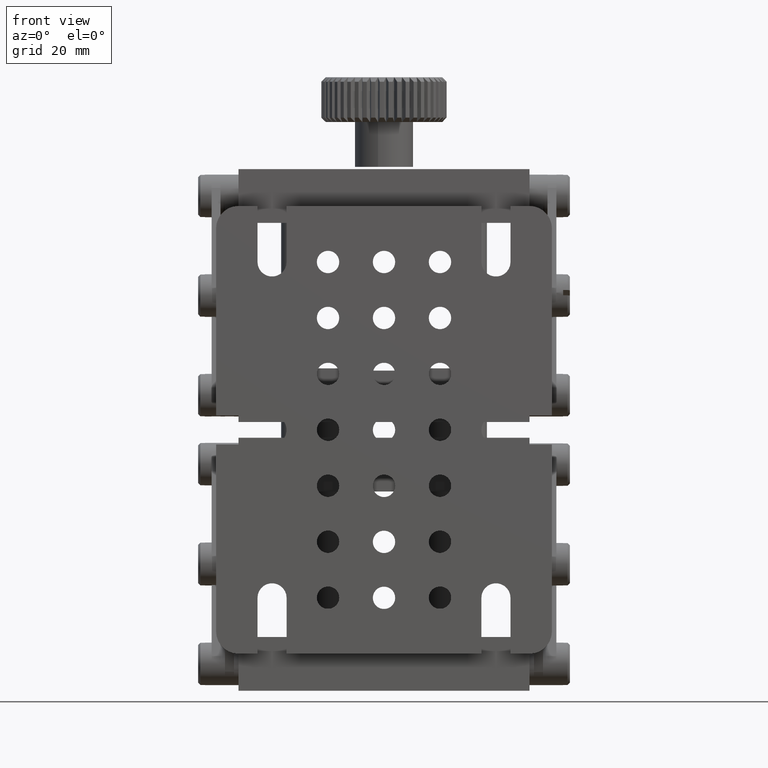
[diagram: clean part render]
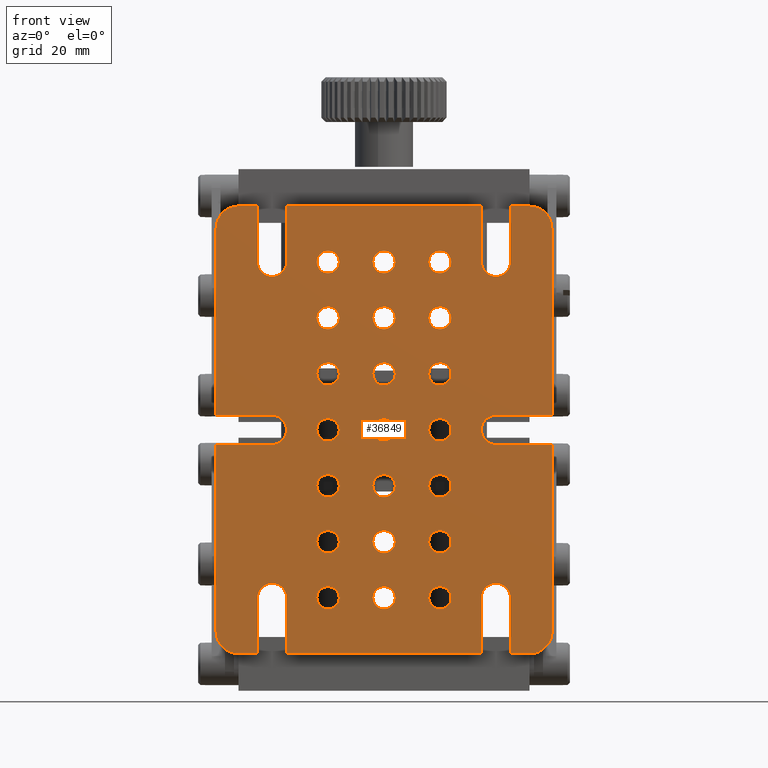
[diagram: same view with one face highlighted and labeled with its STEP entity id]
A machine part, front view. The second image highlights one B-rep face of the part: STEP entity #36849.
In plain terms, the highlighted planar face has unit normal (0, -1, 0).
Its self-contained STEP definition (entity closure, byte-faithful):
#48 = FACE_BOUND ( 'NONE', #4982, .T. ) ;
#97 = AXIS2_PLACEMENT_3D ( 'NONE', #21085, #1793, #24306 ) ;
#131 = AXIS2_PLACEMENT_3D ( 'NONE', #16512, #38948, #19742 ) ;
#220 = CARTESIAN_POINT ( 'NONE',  ( 28.25000000000000400, -10.00000000000000000, 4.765731633453711700E-017 ) ) ;
#238 = DIRECTION ( 'NONE',  ( -8.290220734028594700E-019, 2.423744276090663100E-018, 1.000000000000000000 ) ) ;
#265 = EDGE_CURVE ( 'NONE', #24177, #26945, #25893, .T. ) ;
#342 = EDGE_CURVE ( 'NONE', #38757, #31012, #9295, .T. ) ;
#399 = EDGE_LOOP ( 'NONE', ( #18436, #36636 ) ) ;
#420 = CIRCLE ( 'NONE', #6944, 2.499999999999988500 ) ;
#599 = CIRCLE ( 'NONE', #24145, 2.499999999999988500 ) ;
#759 = DIRECTION ( 'NONE',  ( -1.000000000000000000, -6.995776725858383900E-034, -8.290220734028532100E-019 ) ) ;
#854 = CIRCLE ( 'NONE', #3447, 3.249999999999999600 ) ;
#870 = DIRECTION ( 'NONE',  ( 1.000000000000000000, 0.0000000000000000000, 0.0000000000000000000 ) ) ;
#913 = DIRECTION ( 'NONE',  ( -5.547388448313205200E-034, -1.000000000000000000, 2.423744276090650800E-018 ) ) ;
#943 = DIRECTION ( 'NONE',  ( 1.000000000000000000, 0.0000000000000000000, 0.0000000000000000000 ) ) ;
#969 = AXIS2_PLACEMENT_3D ( 'NONE', #23780, #4516, #26976 ) ;
#980 = CIRCLE ( 'NONE', #31878, 2.499999999999988500 ) ;
#1049 = FACE_BOUND ( 'NONE', #4387, .T. ) ;
#1168 = VECTOR ( 'NONE', #22868, 1000.000000000000000 ) ;
#1189 = DIRECTION ( 'NONE',  ( 1.000000000000000000, 0.0000000000000000000, 0.0000000000000000000 ) ) ;
#1246 = CARTESIAN_POINT ( 'NONE',  ( 37.49999999999999300, -10.00000000000000000, 45.00000000000002100 ) ) ;
#1268 = ORIENTED_EDGE ( 'NONE', *, *, #32097, .T. ) ;
#1376 = CARTESIAN_POINT ( 'NONE',  ( 37.50000000000000700, -10.00000000000000000, -3.250000000000000000 ) ) ;
#1402 = CIRCLE ( 'NONE', #13084, 2.499999999999988500 ) ;
#1460 = EDGE_CURVE ( 'NONE', #25120, #38557, #20698, .T. ) ;
#1486 = CIRCLE ( 'NONE', #12867, 2.499999999999988500 ) ;
#1538 = CARTESIAN_POINT ( 'NONE',  ( 2.694321738559287200E-018, -10.00000000000000000, -3.250000000000000000 ) ) ;
#1562 = CIRCLE ( 'NONE', #13260, 2.499999999999988500 ) ;
#1608 = VECTOR ( 'NONE', #19036, 1000.000000000000000 ) ;
#1657 = CARTESIAN_POINT ( 'NONE',  ( -14.99999999999998900, -10.00000000000000200, -25.00000000000000000 ) ) ;
#1659 = AXIS2_PLACEMENT_3D ( 'NONE', #23748, #4477, #26935 ) ;
#1685 = CARTESIAN_POINT ( 'NONE',  ( -10.00000000000045700, -10.00000000000000200, 37.49999999999992200 ) ) ;
#1743 = CIRCLE ( 'NONE', #97, 2.499999999999988500 ) ;
#1751 = VERTEX_POINT ( 'NONE', #9962 ) ;
#1783 = AXIS2_PLACEMENT_3D ( 'NONE', #31188, #11904, #34406 ) ;
#1793 = DIRECTION ( 'NONE',  ( -5.547388448313205200E-034, -1.000000000000000000, 2.423744276090650800E-018 ) ) ;
#1839 = ORIENTED_EDGE ( 'NONE', *, *, #37717, .F. ) ;
#1911 = VERTEX_POINT ( 'NONE', #17525 ) ;
#1941 = DIRECTION ( 'NONE',  ( 1.000000000000000000, 0.0000000000000000000, 0.0000000000000000000 ) ) ;
#1984 = LINE ( 'NONE', #8261, #18065 ) ;
#1989 = CARTESIAN_POINT ( 'NONE',  ( -32.50000000000000700, -10.00000000000000000, 45.00000000000002100 ) ) ;
#2012 = CARTESIAN_POINT ( 'NONE',  ( 12.49999999999977800, -10.00000000000000200, 37.50000000000008500 ) ) ;
#2039 = VERTEX_POINT ( 'NONE', #21630 ) ;
#2050 = VECTOR ( 'NONE', #4770, 1000.000000000000000 ) ;
#2088 = FACE_BOUND ( 'NONE', #35841, .T. ) ;
#2102 = DIRECTION ( 'NONE',  ( 1.000000000000000000, 0.0000000000000000000, 0.0000000000000000000 ) ) ;
#2243 = CARTESIAN_POINT ( 'NONE',  ( -10.00000000000001200, -10.00000000000000200, 1.594722202687797000E-017 ) ) ;
#2308 = CIRCLE ( 'NONE', #11384, 2.499999999999988500 ) ;
#2448 = CARTESIAN_POINT ( 'NONE',  ( 12.50000000000000000, -10.00000000000000200, -12.50000000000000000 ) ) ;
#2497 = CARTESIAN_POINT ( 'NONE',  ( -5.547388448313206400E-033, -10.00000000000000200, 2.423744276090651100E-017 ) ) ;
#2707 = CARTESIAN_POINT ( 'NONE',  ( 25.00000000000000400, -10.00000000000000000, -37.49999999999999300 ) ) ;
#2740 = CARTESIAN_POINT ( 'NONE',  ( -12.50000000000000000, -10.00000000000000200, -12.50000000000000000 ) ) ;
#2796 = DIRECTION ( 'NONE',  ( -5.547388448313205200E-034, -1.000000000000000000, 2.423744276090650800E-018 ) ) ;
#2840 = VECTOR ( 'NONE', #238, 1000.000000000000000 ) ;
#2952 = DIRECTION ( 'NONE',  ( -6.855991696566941800E-017, -2.423744276090663100E-018, -1.000000000000000000 ) ) ;
#3044 = ORIENTED_EDGE ( 'NONE', *, *, #23288, .F. ) ;
#3070 = VERTEX_POINT ( 'NONE', #16264 ) ;
#3138 = CARTESIAN_POINT ( 'NONE',  ( 10.00000000000001200, -10.00000000000000200, -37.50000000000000700 ) ) ;
#3205 = CARTESIAN_POINT ( 'NONE',  ( 2.499999999999988500, -10.00000000000000200, 12.50000000000000000 ) ) ;
#3310 = AXIS2_PLACEMENT_3D ( 'NONE', #39733, #20487, #1189 ) ;
#3357 = EDGE_CURVE ( 'NONE', #6801, #16355, #31380, .T. ) ;
#3447 = AXIS2_PLACEMENT_3D ( 'NONE', #33203, #13909, #36401 ) ;
#3476 = DIRECTION ( 'NONE',  ( -5.547388448313205200E-034, -1.000000000000000000, 2.423744276090650800E-018 ) ) ;
#3607 = VECTOR ( 'NONE', #17018, 1000.000000000000000 ) ;
#3616 = CARTESIAN_POINT ( 'NONE',  ( -10.00000000000001200, -10.00000000000000200, -25.00000000000000000 ) ) ;
#3753 = VERTEX_POINT ( 'NONE', #29456 ) ;
#3838 = CARTESIAN_POINT ( 'NONE',  ( 32.49999999999999300, -10.00000000000000000, 50.00000000000001400 ) ) ;
#3942 = ORIENTED_EDGE ( 'NONE', *, *, #36582, .F. ) ;
#3957 = ORIENTED_EDGE ( 'NONE', *, *, #20389, .T. ) ;
#4064 = CARTESIAN_POINT ( 'NONE',  ( 37.50000000000000700, -10.00000000000000000, 3.250000000000000000 ) ) ;
#4304 = VECTOR ( 'NONE', #759, 1000.000000000000000 ) ;
#4387 = EDGE_LOOP ( 'NONE', ( #25816, #20390 ) ) ;
#4389 = CARTESIAN_POINT ( 'NONE',  ( -32.50000000000000000, -10.00000000000000000, -49.99999999999998600 ) ) ;
#4407 = VERTEX_POINT ( 'NONE', #39798 ) ;
#4474 = CARTESIAN_POINT ( 'NONE',  ( 14.99999999999976700, -10.00000000000000200, 25.00000000000008500 ) ) ;
#4477 = DIRECTION ( 'NONE',  ( -5.547388448313205200E-034, -1.000000000000000000, 2.423744276090650800E-018 ) ) ;
#4516 = DIRECTION ( 'NONE',  ( -5.547388448313205200E-034, -1.000000000000000000, 2.423744276090650800E-018 ) ) ;
#4663 = CARTESIAN_POINT ( 'NONE',  ( -2.499999999999988500, -10.00000000000000200, 12.50000000000000000 ) ) ;
#4715 = VERTEX_POINT ( 'NONE', #38070 ) ;
#4770 = DIRECTION ( 'NONE',  ( 1.000000000000000000, 6.995776725858383900E-034, 8.290220734028532100E-019 ) ) ;
#4896 = AXIS2_PLACEMENT_3D ( 'NONE', #33970, #14723, #37172 ) ;
#4929 = VERTEX_POINT ( 'NONE', #23820 ) ;
#4933 = DIRECTION ( 'NONE',  ( -5.547388448313205200E-034, -1.000000000000000000, 2.423744276090650800E-018 ) ) ;
#4975 = CARTESIAN_POINT ( 'NONE',  ( 21.75000000000000700, -10.00000000000000000, 4.226867285741857100E-017 ) ) ;
#4982 = EDGE_LOOP ( 'NONE', ( #36165, #33629 ) ) ;
#4985 = ORIENTED_EDGE ( 'NONE', *, *, #5718, .F. ) ;
#5004 = CIRCLE ( 'NONE', #3310, 2.499999999999988500 ) ;
#5010 = AXIS2_PLACEMENT_3D ( 'NONE', #40583, #21361, #2102 ) ;
#5209 = DIRECTION ( 'NONE',  ( 1.000000000000000000, 0.0000000000000000000, 0.0000000000000000000 ) ) ;
#5229 = DIRECTION ( 'NONE',  ( 1.000000000000000000, 0.0000000000000000000, 0.0000000000000000000 ) ) ;
#5360 = CARTESIAN_POINT ( 'NONE',  ( 10.00000000000001200, -10.00000000000000200, 3.265706419013189500E-016 ) ) ;
#5433 = VERTEX_POINT ( 'NONE', #20156 ) ;
#5459 = DIRECTION ( 'NONE',  ( -5.547388448313205200E-034, -1.000000000000000000, 2.423744276090650800E-018 ) ) ;
#5677 = DIRECTION ( 'NONE',  ( 1.000000000000000000, 0.0000000000000000000, 0.0000000000000000000 ) ) ;
#5711 = DIRECTION ( 'NONE',  ( 1.000000000000000000, 0.0000000000000000000, 8.290220734028532100E-019 ) ) ;
#5718 = EDGE_CURVE ( 'NONE', #37854, #21942, #38021, .T. ) ;
#5741 = ORIENTED_EDGE ( 'NONE', *, *, #26745, .F. ) ;
#5761 = CARTESIAN_POINT ( 'NONE',  ( -32.50000000000000000, -10.00000000000000000, -44.99999999999999300 ) ) ;
#5783 = CIRCLE ( 'NONE', #36000, 2.499999999999988500 ) ;
#5842 = EDGE_CURVE ( 'NONE', #4715, #35524, #2308, .T. ) ;
#5946 = DIRECTION ( 'NONE',  ( 1.000000000000000000, 0.0000000000000000000, 0.0000000000000000000 ) ) ;
#5989 = DIRECTION ( 'NONE',  ( 1.000000000000000000, 0.0000000000000000000, 0.0000000000000000000 ) ) ;
#6002 = VERTEX_POINT ( 'NONE', #4064 ) ;
#6207 = CIRCLE ( 'NONE', #6753, 2.499999999999988500 ) ;
#6356 = AXIS2_PLACEMENT_3D ( 'NONE', #11807, #34325, #15076 ) ;
#6468 = CIRCLE ( 'NONE', #35042, 2.499999999999988500 ) ;
#6549 = CARTESIAN_POINT ( 'NONE',  ( -12.50000000000044400, -10.00000000000000200, 37.49999999999992200 ) ) ;
#6612 = CARTESIAN_POINT ( 'NONE',  ( -2.499999999999988500, -10.00000000000000200, -37.50000000000000700 ) ) ;
#6753 = AXIS2_PLACEMENT_3D ( 'NONE', #22737, #3476, #25911 ) ;
#6801 = VERTEX_POINT ( 'NONE', #14938 ) ;
#6863 = CARTESIAN_POINT ( 'NONE',  ( -37.50000000000000700, -10.00000000000000000, 50.00000000000001400 ) ) ;
#6944 = AXIS2_PLACEMENT_3D ( 'NONE', #10208, #32756, #13456 ) ;
#6998 = LINE ( 'NONE', #16551, #40146 ) ;
#7068 = VERTEX_POINT ( 'NONE', #26522 ) ;
#7081 = CARTESIAN_POINT ( 'NONE',  ( -1.036277591753574800E-017, -10.00000000000000200, 12.50000000000000000 ) ) ;
#7101 = AXIS2_PLACEMENT_3D ( 'NONE', #16821, #36100, #32880 ) ;
#7132 = CARTESIAN_POINT ( 'NONE',  ( 37.49999999999999300, -10.00000000000000000, 50.00000000000001400 ) ) ;
#7280 = CIRCLE ( 'NONE', #40285, 2.499999999999988500 ) ;
#7290 = AXIS2_PLACEMENT_3D ( 'NONE', #14834, #37278, #18034 ) ;
#7339 = CARTESIAN_POINT ( 'NONE',  ( 14.99999999999998900, -10.00000000000000200, 12.50000000000008700 ) ) ;
#7594 = VECTOR ( 'NONE', #29790, 1000.000000000000000 ) ;
#7623 = ORIENTED_EDGE ( 'NONE', *, *, #32517, .F. ) ;
#7625 = FACE_BOUND ( 'NONE', #23111, .T. ) ;
#7963 = EDGE_CURVE ( 'NONE', #35524, #4715, #7280, .T. ) ;
#8105 = CARTESIAN_POINT ( 'NONE',  ( 1.036277591753573600E-017, -10.00000000000000200, -12.50000000000000000 ) ) ;
#8146 = AXIS2_PLACEMENT_3D ( 'NONE', #40429, #21229, #1941 ) ;
#8180 = DIRECTION ( 'NONE',  ( -5.547388448313205200E-034, -1.000000000000000000, 2.423744276090650800E-018 ) ) ;
#8261 = CARTESIAN_POINT ( 'NONE',  ( 37.49999999999999300, -10.00000000000000000, 50.00000000000001400 ) ) ;
#8276 = CIRCLE ( 'NONE', #34539, 2.499999999999988500 ) ;
#8364 = DIRECTION ( 'NONE',  ( -5.547388448313205200E-034, -1.000000000000000000, 2.423744276090650800E-018 ) ) ;
#8531 = DIRECTION ( 'NONE',  ( 1.000000000000000000, 6.995776725858383900E-034, 8.290220734028532100E-019 ) ) ;
#8572 = ORIENTED_EDGE ( 'NONE', *, *, #15360, .F. ) ;
#8632 = FACE_BOUND ( 'NONE', #41670, .T. ) ;
#8818 = CARTESIAN_POINT ( 'NONE',  ( 37.49999999999999300, -10.00000000000000000, 50.00000000000001400 ) ) ;
#8869 = ORIENTED_EDGE ( 'NONE', *, *, #18456, .F. ) ;
#8997 = DIRECTION ( 'NONE',  ( 1.000000000000000000, 0.0000000000000000000, 0.0000000000000000000 ) ) ;
#9058 = ORIENTED_EDGE ( 'NONE', *, *, #29476, .F. ) ;
#9110 = EDGE_CURVE ( 'NONE', #39692, #31501, #38247, .T. ) ;
#9295 = CIRCLE ( 'NONE', #41513, 2.499999999999988500 ) ;
#9423 = VERTEX_POINT ( 'NONE', #9740 ) ;
#9541 = ORIENTED_EDGE ( 'NONE', *, *, #11450, .F. ) ;
#9623 = FACE_BOUND ( 'NONE', #25073, .T. ) ;
#9692 = DIRECTION ( 'NONE',  ( -5.547388448313205200E-034, -1.000000000000000000, 2.423744276090650800E-018 ) ) ;
#9728 = DIRECTION ( 'NONE',  ( 1.000000000000000000, 0.0000000000000000000, 0.0000000000000000000 ) ) ;
#9740 = CARTESIAN_POINT ( 'NONE',  ( -2.499999999999988500, -10.00000000000000200, -25.00000000000000000 ) ) ;
#9741 = LINE ( 'NONE', #6863, #1168 ) ;
#9962 = CARTESIAN_POINT ( 'NONE',  ( 32.50000000000000700, -10.00000000000000000, -49.99999999999999300 ) ) ;
#10208 = CARTESIAN_POINT ( 'NONE',  ( -12.50000000000000000, -10.00000000000000200, 12.49999999999991500 ) ) ;
#10215 = EDGE_CURVE ( 'NONE', #5433, #34201, #23680, .T. ) ;
#10262 = CARTESIAN_POINT ( 'NONE',  ( -21.75000000000045100, -10.00000000000000000, 6.206212664394078400E-018 ) ) ;
#10263 = DIRECTION ( 'NONE',  ( 1.000000000000000000, 0.0000000000000000000, 0.0000000000000000000 ) ) ;
#10340 = CARTESIAN_POINT ( 'NONE',  ( 3.108832775260722300E-017, -10.00000000000000200, -37.50000000000000700 ) ) ;
#10482 = LINE ( 'NONE', #35307, #27576 ) ;
#10527 = AXIS2_PLACEMENT_3D ( 'NONE', #14951, #37373, #18151 ) ;
#10529 = CARTESIAN_POINT ( 'NONE',  ( -37.50000000000000700, -10.00000000000000000, 45.00000000000002100 ) ) ;
#10619 = CARTESIAN_POINT ( 'NONE',  ( -12.50000000000000000, -10.00000000000000200, 24.99999999999991100 ) ) ;
#10676 = CARTESIAN_POINT ( 'NONE',  ( 9.999999999999790400, -10.00000000000000200, 37.50000000000008500 ) ) ;
#10995 = ORIENTED_EDGE ( 'NONE', *, *, #33280, .F. ) ;
#11015 = DIRECTION ( 'NONE',  ( -5.547388448313205200E-034, -1.000000000000000000, 2.423744276090650800E-018 ) ) ;
#11041 = ORIENTED_EDGE ( 'NONE', *, *, #17003, .F. ) ;
#11054 = EDGE_CURVE ( 'NONE', #26945, #24177, #16002, .T. ) ;
#11157 = EDGE_CURVE ( 'NONE', #13131, #19544, #41059, .T. ) ;
#11332 = DIRECTION ( 'NONE',  ( 1.000000000000000000, 0.0000000000000000000, 0.0000000000000000000 ) ) ;
#11376 = LINE ( 'NONE', #38773, #2840 ) ;
#11382 = CARTESIAN_POINT ( 'NONE',  ( 21.75000000000045100, -10.00000000000000000, 37.49999999999983700 ) ) ;
#11384 = AXIS2_PLACEMENT_3D ( 'NONE', #19264, #41702, #22491 ) ;
#11400 = DIRECTION ( 'NONE',  ( -5.547388448313205200E-034, -1.000000000000000000, 2.423744276090650800E-018 ) ) ;
#11450 = EDGE_CURVE ( 'NONE', #27463, #30426, #11376, .T. ) ;
#11527 = DIRECTION ( 'NONE',  ( -1.396069001515474300E-016, 2.423744276090663100E-018, 1.000000000000000000 ) ) ;
#11537 = VERTEX_POINT ( 'NONE', #1376 ) ;
#11538 = ORIENTED_EDGE ( 'NONE', *, *, #17722, .F. ) ;
#11551 = CIRCLE ( 'NONE', #10527, 3.249999999999999600 ) ;
#11595 = EDGE_CURVE ( 'NONE', #28390, #17484, #1743, .T. ) ;
#11648 = EDGE_CURVE ( 'NONE', #41411, #28619, #16831, .T. ) ;
#11694 = DIRECTION ( 'NONE',  ( -1.000000000000000000, -6.995776725858383900E-034, -8.290220734028532100E-019 ) ) ;
#11807 = CARTESIAN_POINT ( 'NONE',  ( -5.547388448313205000E-033, -10.00000000000000000, 2.423744276090650800E-017 ) ) ;
#11904 = DIRECTION ( 'NONE',  ( -5.547388448313205200E-034, -1.000000000000000000, 2.423744276090650800E-018 ) ) ;
#11909 = AXIS2_PLACEMENT_3D ( 'NONE', #28955, #9692, #32222 ) ;
#11931 = EDGE_CURVE ( 'NONE', #24364, #24955, #9741, .T. ) ;
#11949 = EDGE_CURVE ( 'NONE', #31012, #38757, #31383, .T. ) ;
#12068 = ORIENTED_EDGE ( 'NONE', *, *, #14850, .F. ) ;
#12071 = ORIENTED_EDGE ( 'NONE', *, *, #29616, .T. ) ;
#12173 = LINE ( 'NONE', #29814, #3607 ) ;
#12198 = AXIS2_PLACEMENT_3D ( 'NONE', #15358, #37788, #18562 ) ;
#12211 = DIRECTION ( 'NONE',  ( 1.000000000000000000, 0.0000000000000000000, 0.0000000000000000000 ) ) ;
#12242 = ORIENTED_EDGE ( 'NONE', *, *, #16179, .F. ) ;
#12314 = ORIENTED_EDGE ( 'NONE', *, *, #31294, .F. ) ;
#12488 = ORIENTED_EDGE ( 'NONE', *, *, #11931, .T. ) ;
#12537 = CARTESIAN_POINT ( 'NONE',  ( -25.00000000000044800, -10.00000000000000000, 37.49999999999980800 ) ) ;
#12662 = CARTESIAN_POINT ( 'NONE',  ( -25.00000000000000400, -10.00000000000000000, 3.250000000000000000 ) ) ;
#12867 = AXIS2_PLACEMENT_3D ( 'NONE', #39463, #20236, #943 ) ;
#12890 = VERTEX_POINT ( 'NONE', #21958 ) ;
#12947 = CARTESIAN_POINT ( 'NONE',  ( -21.75000000000000700, -10.00000000000000000, -37.49999999999999300 ) ) ;
#13084 = AXIS2_PLACEMENT_3D ( 'NONE', #38367, #19177, #41602 ) ;
#13131 = VERTEX_POINT ( 'NONE', #29911 ) ;
#13260 = AXIS2_PLACEMENT_3D ( 'NONE', #30253, #11015, #33501 ) ;
#13456 = DIRECTION ( 'NONE',  ( 1.000000000000000000, 0.0000000000000000000, 0.0000000000000000000 ) ) ;
#13537 = VERTEX_POINT ( 'NONE', #3616 ) ;
#13592 = DIRECTION ( 'NONE',  ( 1.000000000000000000, 0.0000000000000000000, 0.0000000000000000000 ) ) ;
#13619 = DIRECTION ( 'NONE',  ( -5.547388448313205200E-034, -1.000000000000000000, 2.423744276090650800E-018 ) ) ;
#13625 = CARTESIAN_POINT ( 'NONE',  ( -28.25000000000044800, -10.00000000000000000, 8.175691872755335500E-019 ) ) ;
#13760 = EDGE_CURVE ( 'NONE', #38429, #4929, #16788, .T. ) ;
#13786 = EDGE_CURVE ( 'NONE', #36068, #3753, #32908, .T. ) ;
#13799 = DIRECTION ( 'NONE',  ( -5.547388448313205200E-034, -1.000000000000000000, 2.423744276090650800E-018 ) ) ;
#13817 = CARTESIAN_POINT ( 'NONE',  ( 2.499999999999988500, -10.00000000000000200, -37.50000000000000700 ) ) ;
#13824 = DIRECTION ( 'NONE',  ( 1.000000000000000000, 0.0000000000000000000, 0.0000000000000000000 ) ) ;
#13851 = LINE ( 'NONE', #7132, #4304 ) ;
#13909 = DIRECTION ( 'NONE',  ( -5.547388448313205200E-034, -1.000000000000000000, 2.423744276090650800E-018 ) ) ;
#14097 = CARTESIAN_POINT ( 'NONE',  ( 28.25000000000000400, -10.00000000000000000, -37.49999999999999300 ) ) ;
#14387 = DIRECTION ( 'NONE',  ( 8.290220734028594700E-019, -2.423744276090663100E-018, -1.000000000000000000 ) ) ;
#14485 = ORIENTED_EDGE ( 'NONE', *, *, #23166, .F. ) ;
#14553 = EDGE_LOOP ( 'NONE', ( #24261, #29633 ) ) ;
#14623 = ORIENTED_EDGE ( 'NONE', *, *, #30743, .T. ) ;
#14634 = EDGE_CURVE ( 'NONE', #29107, #13537, #19702, .T. ) ;
#14651 = CARTESIAN_POINT ( 'NONE',  ( -28.25000000000000400, -10.00000000000000000, 8.175691872759006300E-019 ) ) ;
#14686 = FACE_OUTER_BOUND ( 'NONE', #24003, .T. ) ;
#14713 = CARTESIAN_POINT ( 'NONE',  ( -12.50000000000000000, -10.00000000000000200, 1.387466684337084700E-017 ) ) ;
#14723 = DIRECTION ( 'NONE',  ( -5.547388448313205200E-034, -1.000000000000000000, 2.423744276090650800E-018 ) ) ;
#14753 = AXIS2_PLACEMENT_3D ( 'NONE', #2497, #24956, #5711 ) ;
#14784 = CIRCLE ( 'NONE', #969, 2.499999999999988500 ) ;
#14820 = EDGE_CURVE ( 'NONE', #35946, #25115, #16175, .T. ) ;
#14834 = CARTESIAN_POINT ( 'NONE',  ( 32.50000000000000700, -10.00000000000000000, -45.00000000000000000 ) ) ;
#14850 = EDGE_CURVE ( 'NONE', #13537, #29107, #18636, .T. ) ;
#14897 = DIRECTION ( 'NONE',  ( -5.547388448313205200E-034, -1.000000000000000000, 2.423744276090650800E-018 ) ) ;
#14938 = CARTESIAN_POINT ( 'NONE',  ( 14.99999999999976700, -10.00000000000000200, 37.50000000000008500 ) ) ;
#14951 = CARTESIAN_POINT ( 'NONE',  ( -25.00000000000000400, -10.00000000000000000, -37.49999999999999300 ) ) ;
#14969 = DIRECTION ( 'NONE',  ( -5.547388448313205200E-034, -1.000000000000000000, 2.423744276090650800E-018 ) ) ;
#14993 = EDGE_CURVE ( 'NONE', #35592, #22364, #980, .T. ) ;
#15076 = DIRECTION ( 'NONE',  ( 1.000000000000000000, 6.995776725858383900E-034, 8.290220734028532100E-019 ) ) ;
#15193 = FACE_BOUND ( 'NONE', #15482, .T. ) ;
#15198 = LINE ( 'NONE', #10262, #31277 ) ;
#15241 = CARTESIAN_POINT ( 'NONE',  ( -12.50000000000000000, -10.00000000000000200, -12.50000000000000000 ) ) ;
#15322 = DIRECTION ( 'NONE',  ( -1.396069001515474300E-016, 2.423744276090663100E-018, 1.000000000000000000 ) ) ;
#15358 = CARTESIAN_POINT ( 'NONE',  ( -25.00000000000000400, -10.00000000000000000, 3.511890925835173000E-018 ) ) ;
#15360 = EDGE_CURVE ( 'NONE', #21942, #1911, #6998, .T. ) ;
#15420 = EDGE_CURVE ( 'NONE', #35946, #13131, #13851, .T. ) ;
#15482 = EDGE_LOOP ( 'NONE', ( #8869, #10995 ) ) ;
#15541 = EDGE_CURVE ( 'NONE', #29072, #30736, #37973, .T. ) ;
#15566 = CIRCLE ( 'NONE', #38140, 2.499999999999988500 ) ;
#15568 = AXIS2_PLACEMENT_3D ( 'NONE', #15241, #37668, #18422 ) ;
#15640 = ORIENTED_EDGE ( 'NONE', *, *, #19167, .F. ) ;
#15804 = DIRECTION ( 'NONE',  ( 1.000000000000000000, 0.0000000000000000000, 0.0000000000000000000 ) ) ;
#15931 = CARTESIAN_POINT ( 'NONE',  ( -14.99999999999998900, -10.00000000000000200, 12.49999999999991500 ) ) ;
#15938 = ORIENTED_EDGE ( 'NONE', *, *, #33757, .F. ) ;
#15970 = VERTEX_POINT ( 'NONE', #14097 ) ;
#16002 = CIRCLE ( 'NONE', #34338, 2.499999999999988500 ) ;
#16014 = ORIENTED_EDGE ( 'NONE', *, *, #39389, .F. ) ;
#16075 = DIRECTION ( 'NONE',  ( 1.000000000000000000, 4.753362808258978800E-034, -9.168956331202685000E-017 ) ) ;
#16085 = EDGE_LOOP ( 'NONE', ( #20570, #33428 ) ) ;
#16175 = LINE ( 'NONE', #13625, #7594 ) ;
#16179 = EDGE_CURVE ( 'NONE', #15970, #21052, #18312, .T. ) ;
#16199 = FACE_BOUND ( 'NONE', #35081, .T. ) ;
#16264 = CARTESIAN_POINT ( 'NONE',  ( 2.499999999999988500, -10.00000000000000200, -25.00000000000000000 ) ) ;
#16355 = VERTEX_POINT ( 'NONE', #10676 ) ;
#16439 = CARTESIAN_POINT ( 'NONE',  ( 2.499999999999988500, -10.00000000000000200, 25.00000000000000000 ) ) ;
#16490 = CIRCLE ( 'NONE', #29886, 3.249999999999999600 ) ;
#16512 = CARTESIAN_POINT ( 'NONE',  ( 25.00000000000044800, -10.00000000000000000, 37.49999999999980800 ) ) ;
#16551 = CARTESIAN_POINT ( 'NONE',  ( -2.694321738559298700E-018, -10.00000000000000000, 3.250000000000000000 ) ) ;
#16589 = CARTESIAN_POINT ( 'NONE',  ( 14.99999999999998900, -10.00000000000000200, -12.50000000000000000 ) ) ;
#16788 = CIRCLE ( 'NONE', #21031, 2.499999999999988500 ) ;
#16821 = CARTESIAN_POINT ( 'NONE',  ( -12.50000000000044400, -10.00000000000000200, 37.49999999999992200 ) ) ;
#16831 = CIRCLE ( 'NONE', #5010, 2.499999999999988500 ) ;
#16974 = EDGE_CURVE ( 'NONE', #29488, #23145, #21698, .T. ) ;
#17003 = EDGE_CURVE ( 'NONE', #7068, #32049, #26175, .T. ) ;
#17018 = DIRECTION ( 'NONE',  ( 1.000000000000000000, 4.753362808258978800E-034, -9.168956331202685000E-017 ) ) ;
#17095 = VECTOR ( 'NONE', #14387, 1000.000000000000000 ) ;
#17121 = ORIENTED_EDGE ( 'NONE', *, *, #28753, .F. ) ;
#17161 = FACE_BOUND ( 'NONE', #14553, .T. ) ;
#17227 = VECTOR ( 'NONE', #31281, 1000.000000000000000 ) ;
#17235 = DIRECTION ( 'NONE',  ( -5.547388448313205200E-034, -1.000000000000000000, 2.423744276090650800E-018 ) ) ;
#17283 = VERTEX_POINT ( 'NONE', #39281 ) ;
#17306 = CARTESIAN_POINT ( 'NONE',  ( 37.49999999999999300, -10.00000000000000000, 50.00000000000001400 ) ) ;
#17484 = VERTEX_POINT ( 'NONE', #33810 ) ;
#17525 = CARTESIAN_POINT ( 'NONE',  ( -37.50000000000000700, -10.00000000000000000, 3.250000000000000000 ) ) ;
#17722 = EDGE_CURVE ( 'NONE', #23145, #29488, #1402, .T. ) ;
#17901 = DIRECTION ( 'NONE',  ( 1.000000000000000000, 0.0000000000000000000, 8.290220734028532100E-019 ) ) ;
#18034 = DIRECTION ( 'NONE',  ( 1.000000000000000000, 0.0000000000000000000, 0.0000000000000000000 ) ) ;
#18065 = VECTOR ( 'NONE', #11527, 1000.000000000000000 ) ;
#18082 = EDGE_CURVE ( 'NONE', #40107, #39272, #32070, .T. ) ;
#18100 = LINE ( 'NONE', #4975, #17095 ) ;
#18131 = DIRECTION ( 'NONE',  ( -5.547388448313205200E-034, -1.000000000000000000, 2.423744276090650800E-018 ) ) ;
#18151 = DIRECTION ( 'NONE',  ( 1.000000000000000000, 0.0000000000000000000, 0.0000000000000000000 ) ) ;
#18170 = FACE_BOUND ( 'NONE', #30102, .T. ) ;
#18179 = AXIS2_PLACEMENT_3D ( 'NONE', #2707, #25183, #5946 ) ;
#18192 = CIRCLE ( 'NONE', #26970, 2.499999999999988500 ) ;
#18312 = CIRCLE ( 'NONE', #18179, 3.249999999999999600 ) ;
#18338 = CARTESIAN_POINT ( 'NONE',  ( -2.499999999999988500, -10.00000000000000200, 25.00000000000000000 ) ) ;
#18348 = CARTESIAN_POINT ( 'NONE',  ( -10.00000000000001200, -10.00000000000000200, 24.99999999999991100 ) ) ;
#18422 = DIRECTION ( 'NONE',  ( 1.000000000000000000, 0.0000000000000000000, 0.0000000000000000000 ) ) ;
#18436 = ORIENTED_EDGE ( 'NONE', *, *, #40269, .F. ) ;
#18456 = EDGE_CURVE ( 'NONE', #38761, #35501, #420, .T. ) ;
#18515 = CARTESIAN_POINT ( 'NONE',  ( 3.108832775260722300E-017, -10.00000000000000200, -37.50000000000000700 ) ) ;
#18562 = DIRECTION ( 'NONE',  ( 1.000000000000000000, 0.0000000000000000000, 8.290220734028532100E-019 ) ) ;
#18570 = DIRECTION ( 'NONE',  ( -5.547388448313205200E-034, -1.000000000000000000, 2.423744276090650800E-018 ) ) ;
#18636 = CIRCLE ( 'NONE', #1659, 2.499999999999988500 ) ;
#18708 = CARTESIAN_POINT ( 'NONE',  ( 2.072555183507147800E-017, -10.00000000000000200, -25.00000000000000000 ) ) ;
#18934 = CIRCLE ( 'NONE', #36055, 3.249999999999999600 ) ;
#19036 = DIRECTION ( 'NONE',  ( 1.000000000000000000, 4.753362808258978800E-034, -9.168956331202685000E-017 ) ) ;
#19071 = ORIENTED_EDGE ( 'NONE', *, *, #38846, .F. ) ;
#19167 = EDGE_CURVE ( 'NONE', #17283, #19969, #18934, .T. ) ;
#19177 = DIRECTION ( 'NONE',  ( -5.547388448313205200E-034, -1.000000000000000000, 2.423744276090650800E-018 ) ) ;
#19264 = CARTESIAN_POINT ( 'NONE',  ( 12.50000000000000000, -10.00000000000000200, -37.50000000000000700 ) ) ;
#19544 = VERTEX_POINT ( 'NONE', #10529 ) ;
#19594 = ORIENTED_EDGE ( 'NONE', *, *, #29978, .F. ) ;
#19613 = AXIS2_PLACEMENT_3D ( 'NONE', #37794, #18570, #41018 ) ;
#19702 = CIRCLE ( 'NONE', #11909, 2.499999999999988500 ) ;
#19742 = DIRECTION ( 'NONE',  ( 1.000000000000000000, 0.0000000000000000000, 0.0000000000000000000 ) ) ;
#19943 = EDGE_CURVE ( 'NONE', #31501, #39692, #6207, .T. ) ;
#19969 = VERTEX_POINT ( 'NONE', #35503 ) ;
#20010 = CARTESIAN_POINT ( 'NONE',  ( 28.25000000000044800, -10.00000000000000000, 4.765731633453748100E-017 ) ) ;
#20136 = AXIS2_PLACEMENT_3D ( 'NONE', #22049, #2796, #25259 ) ;
#20156 = CARTESIAN_POINT ( 'NONE',  ( 9.999999999999790400, -10.00000000000000200, 25.00000000000008500 ) ) ;
#20183 = DIRECTION ( 'NONE',  ( -5.547388448313205200E-034, -1.000000000000000000, 2.423744276090650800E-018 ) ) ;
#20184 = VECTOR ( 'NONE', #22763, 1000.000000000000000 ) ;
#20221 = CARTESIAN_POINT ( 'NONE',  ( -12.50000000000000000, -10.00000000000000200, 1.387466684337084700E-017 ) ) ;
#20236 = DIRECTION ( 'NONE',  ( -5.547388448313205200E-034, -1.000000000000000000, 2.423744276090650800E-018 ) ) ;
#20248 = EDGE_CURVE ( 'NONE', #1751, #4407, #33296, .T. ) ;
#20311 = EDGE_CURVE ( 'NONE', #22651, #23545, #26770, .T. ) ;
#20317 = EDGE_CURVE ( 'NONE', #35100, #36527, #34369, .T. ) ;
#20389 = EDGE_CURVE ( 'NONE', #34682, #1751, #38834, .T. ) ;
#20390 = ORIENTED_EDGE ( 'NONE', *, *, #11949, .F. ) ;
#20487 = DIRECTION ( 'NONE',  ( -5.547388448313205200E-034, -1.000000000000000000, 2.423744276090650800E-018 ) ) ;
#20553 = CARTESIAN_POINT ( 'NONE',  ( 10.00000000000001200, -10.00000000000000200, 12.50000000000008700 ) ) ;
#20570 = ORIENTED_EDGE ( 'NONE', *, *, #25396, .F. ) ;
#20618 = CARTESIAN_POINT ( 'NONE',  ( 21.75000000000045100, -10.00000000000000000, 4.226867285741893500E-017 ) ) ;
#20630 = LINE ( 'NONE', #17306, #37694 ) ;
#20689 = CARTESIAN_POINT ( 'NONE',  ( -37.50000000000001400, -10.00000000000000000, -44.99999999999998600 ) ) ;
#20698 = CIRCLE ( 'NONE', #15568, 2.499999999999988500 ) ;
#20846 = ORIENTED_EDGE ( 'NONE', *, *, #20317, .T. ) ;
#21031 = AXIS2_PLACEMENT_3D ( 'NONE', #14713, #37163, #17901 ) ;
#21052 = VERTEX_POINT ( 'NONE', #22907 ) ;
#21085 = CARTESIAN_POINT ( 'NONE',  ( 12.50000000000000000, -10.00000000000000200, -25.00000000000000000 ) ) ;
#21229 = DIRECTION ( 'NONE',  ( -5.547388448313205200E-034, -1.000000000000000000, 2.423744276090650800E-018 ) ) ;
#21282 = ORIENTED_EDGE ( 'NONE', *, *, #38467, .T. ) ;
#21361 = DIRECTION ( 'NONE',  ( -5.547388448313205200E-034, -1.000000000000000000, 2.423744276090650800E-018 ) ) ;
#21489 = AXIS2_PLACEMENT_3D ( 'NONE', #2012, #24488, #5229 ) ;
#21511 = CARTESIAN_POINT ( 'NONE',  ( -28.25000000000044800, -10.00000000000000000, 37.49999999999979400 ) ) ;
#21569 = VECTOR ( 'NONE', #32803, 1000.000000000000000 ) ;
#21612 = ORIENTED_EDGE ( 'NONE', *, *, #14820, .F. ) ;
#21630 = CARTESIAN_POINT ( 'NONE',  ( 25.00000000000000400, -10.00000000000000000, 3.250000000000000000 ) ) ;
#21698 = CIRCLE ( 'NONE', #1783, 2.499999999999988500 ) ;
#21709 = EDGE_CURVE ( 'NONE', #32363, #35945, #33988, .T. ) ;
#21938 = DIRECTION ( 'NONE',  ( 1.000000000000000000, 0.0000000000000000000, 0.0000000000000000000 ) ) ;
#21942 = VERTEX_POINT ( 'NONE', #12662 ) ;
#21958 = CARTESIAN_POINT ( 'NONE',  ( 21.75000000000000700, -10.00000000000000000, -49.99999999999999300 ) ) ;
#21974 = AXIS2_PLACEMENT_3D ( 'NONE', #27412, #8180, #30692 ) ;
#22012 = CIRCLE ( 'NONE', #21974, 2.499999999999988500 ) ;
#22016 = CARTESIAN_POINT ( 'NONE',  ( -15.00000000000043300, -10.00000000000000200, 37.49999999999992200 ) ) ;
#22049 = CARTESIAN_POINT ( 'NONE',  ( 12.50000000000000000, -10.00000000000000200, -12.50000000000000000 ) ) ;
#22335 = ORIENTED_EDGE ( 'NONE', *, *, #29703, .F. ) ;
#22364 = VERTEX_POINT ( 'NONE', #18348 ) ;
#22491 = DIRECTION ( 'NONE',  ( 1.000000000000000000, 0.0000000000000000000, 0.0000000000000000000 ) ) ;
#22525 = ORIENTED_EDGE ( 'NONE', *, *, #9110, .F. ) ;
#22588 = ORIENTED_EDGE ( 'NONE', *, *, #31966, .F. ) ;
#22651 = VERTEX_POINT ( 'NONE', #39280 ) ;
#22737 = CARTESIAN_POINT ( 'NONE',  ( 1.036277591753573600E-017, -10.00000000000000200, -12.50000000000000000 ) ) ;
#22763 = DIRECTION ( 'NONE',  ( -8.290220734028594700E-019, 2.423744276090663100E-018, 1.000000000000000000 ) ) ;
#22868 = DIRECTION ( 'NONE',  ( -6.855991696566941800E-017, -2.423744276090663100E-018, -1.000000000000000000 ) ) ;
#22907 = CARTESIAN_POINT ( 'NONE',  ( 21.75000000000000700, -10.00000000000000000, -37.49999999999999300 ) ) ;
#23111 = EDGE_LOOP ( 'NONE', ( #32054, #40813 ) ) ;
#23145 = VERTEX_POINT ( 'NONE', #32795 ) ;
#23166 = EDGE_CURVE ( 'NONE', #36942, #24157, #15198, .T. ) ;
#23186 = EDGE_LOOP ( 'NONE', ( #27593, #19594 ) ) ;
#23191 = AXIS2_PLACEMENT_3D ( 'NONE', #27614, #8364, #30856 ) ;
#23288 = EDGE_CURVE ( 'NONE', #19969, #11537, #27691, .T. ) ;
#23431 = DIRECTION ( 'NONE',  ( 1.000000000000000000, 0.0000000000000000000, 8.290220734028532100E-019 ) ) ;
#23437 = CIRCLE ( 'NONE', #26499, 2.499999999999988500 ) ;
#23545 = VERTEX_POINT ( 'NONE', #16589 ) ;
#23546 = CIRCLE ( 'NONE', #23870, 2.499999999999988500 ) ;
#23595 = ORIENTED_EDGE ( 'NONE', *, *, #1460, .F. ) ;
#23680 = CIRCLE ( 'NONE', #8146, 2.499999999999988500 ) ;
#23714 = FACE_BOUND ( 'NONE', #37112, .T. ) ;
#23748 = CARTESIAN_POINT ( 'NONE',  ( -12.50000000000000000, -10.00000000000000200, -25.00000000000000000 ) ) ;
#23780 = CARTESIAN_POINT ( 'NONE',  ( 12.50000000000000000, -10.00000000000000200, 3.460021867844217600E-017 ) ) ;
#23820 = CARTESIAN_POINT ( 'NONE',  ( -14.99999999999998900, -10.00000000000000200, 3.058450900662476300E-016 ) ) ;
#23870 = AXIS2_PLACEMENT_3D ( 'NONE', #33096, #13799, #36318 ) ;
#24003 = EDGE_LOOP ( 'NONE', ( #19071, #12242, #32983, #3957, #30923, #28724, #3044, #15640, #31273, #15938, #14623, #12071, #20846, #29083, #5741, #25881, #30086, #14485, #25154, #21612, #34221, #27152, #1268, #8572, #4985, #22335, #12488, #21282, #36207, #31607, #16014, #9541, #30636 ) ) ;
#24145 = AXIS2_PLACEMENT_3D ( 'NONE', #2740, #25217, #5989 ) ;
#24157 = VERTEX_POINT ( 'NONE', #25230 ) ;
#24177 = VERTEX_POINT ( 'NONE', #22016 ) ;
#24214 = CARTESIAN_POINT ( 'NONE',  ( 25.00000000000000400, -10.00000000000000000, 4.496299459597784100E-017 ) ) ;
#24230 = CARTESIAN_POINT ( 'NONE',  ( -25.00000000000000400, -10.00000000000000000, -3.250000000000000000 ) ) ;
#24261 = ORIENTED_EDGE ( 'NONE', *, *, #32061, .F. ) ;
#24306 = DIRECTION ( 'NONE',  ( 1.000000000000000000, 0.0000000000000000000, 0.0000000000000000000 ) ) ;
#24364 = VERTEX_POINT ( 'NONE', #32691 ) ;
#24466 = DIRECTION ( 'NONE',  ( -5.547388448313205200E-034, -1.000000000000000000, 2.423744276090650800E-018 ) ) ;
#24488 = DIRECTION ( 'NONE',  ( -5.547388448313205200E-034, -1.000000000000000000, 2.423744276090650800E-018 ) ) ;
#24704 = FACE_BOUND ( 'NONE', #23186, .T. ) ;
#24712 = CARTESIAN_POINT ( 'NONE',  ( -2.072555183507149000E-017, -10.00000000000000200, 25.00000000000000000 ) ) ;
#24914 = DIRECTION ( 'NONE',  ( -5.547388448313205200E-034, -1.000000000000000000, 2.423744276090650800E-018 ) ) ;
#24952 = AXIS2_PLACEMENT_3D ( 'NONE', #10340, #32865, #13592 ) ;
#24955 = VERTEX_POINT ( 'NONE', #20689 ) ;
#24956 = DIRECTION ( 'NONE',  ( -5.547388448313205200E-034, -1.000000000000000000, 2.423744276090650800E-018 ) ) ;
#25073 = EDGE_LOOP ( 'NONE', ( #32157, #11538 ) ) ;
#25115 = VERTEX_POINT ( 'NONE', #21511 ) ;
#25120 = VERTEX_POINT ( 'NONE', #37640 ) ;
#25154 = ORIENTED_EDGE ( 'NONE', *, *, #28869, .F. ) ;
#25183 = DIRECTION ( 'NONE',  ( -5.547388448313205200E-034, -1.000000000000000000, 2.423744276090650800E-018 ) ) ;
#25217 = DIRECTION ( 'NONE',  ( -5.547388448313205200E-034, -1.000000000000000000, 2.423744276090650800E-018 ) ) ;
#25230 = CARTESIAN_POINT ( 'NONE',  ( -21.75000000000045100, -10.00000000000000000, 49.99999999999984400 ) ) ;
#25259 = DIRECTION ( 'NONE',  ( 1.000000000000000000, 0.0000000000000000000, 0.0000000000000000000 ) ) ;
#25386 = CARTESIAN_POINT ( 'NONE',  ( -37.50000000000000700, -10.00000000000000000, 50.00000000000001400 ) ) ;
#25396 = EDGE_CURVE ( 'NONE', #34201, #5433, #5004, .T. ) ;
#25547 = ORIENTED_EDGE ( 'NONE', *, *, #13786, .F. ) ;
#25554 = CARTESIAN_POINT ( 'NONE',  ( -14.99999999999998900, -10.00000000000000200, -12.50000000000000000 ) ) ;
#25586 = AXIS2_PLACEMENT_3D ( 'NONE', #18708, #41157, #21938 ) ;
#25632 = VERTEX_POINT ( 'NONE', #18338 ) ;
#25702 = FACE_BOUND ( 'NONE', #40074, .T. ) ;
#25816 = ORIENTED_EDGE ( 'NONE', *, *, #342, .F. ) ;
#25881 = ORIENTED_EDGE ( 'NONE', *, *, #15541, .F. ) ;
#25893 = CIRCLE ( 'NONE', #7101, 2.499999999999988500 ) ;
#25911 = DIRECTION ( 'NONE',  ( 1.000000000000000000, 0.0000000000000000000, 0.0000000000000000000 ) ) ;
#25992 = ORIENTED_EDGE ( 'NONE', *, *, #28841, .F. ) ;
#26149 = CARTESIAN_POINT ( 'NONE',  ( 28.25000000000044800, -10.00000000000000000, 49.99999999999980100 ) ) ;
#26175 = CIRCLE ( 'NONE', #14753, 2.499999999999988500 ) ;
#26255 = CIRCLE ( 'NONE', #34615, 2.499999999999988500 ) ;
#26469 = ORIENTED_EDGE ( 'NONE', *, *, #41102, .F. ) ;
#26499 = AXIS2_PLACEMENT_3D ( 'NONE', #10619, #33122, #13824 ) ;
#26522 = CARTESIAN_POINT ( 'NONE',  ( 2.499999999999988500, -10.00000000000000200, 2.630999794441363500E-017 ) ) ;
#26597 = ORIENTED_EDGE ( 'NONE', *, *, #5842, .F. ) ;
#26702 = FACE_BOUND ( 'NONE', #28927, .T. ) ;
#26745 = EDGE_CURVE ( 'NONE', #30736, #34871, #26833, .T. ) ;
#26770 = CIRCLE ( 'NONE', #35318, 2.499999999999988500 ) ;
#26833 = CIRCLE ( 'NONE', #131, 3.249999999999999600 ) ;
#26935 = DIRECTION ( 'NONE',  ( 1.000000000000000000, 0.0000000000000000000, 0.0000000000000000000 ) ) ;
#26945 = VERTEX_POINT ( 'NONE', #1685 ) ;
#26970 = AXIS2_PLACEMENT_3D ( 'NONE', #39392, #20183, #870 ) ;
#26976 = DIRECTION ( 'NONE',  ( 1.000000000000000000, 0.0000000000000000000, 8.290220734028542700E-019 ) ) ;
#27006 = AXIS2_PLACEMENT_3D ( 'NONE', #1989, #24466, #5209 ) ;
#27106 = ORIENTED_EDGE ( 'NONE', *, *, #33305, .F. ) ;
#27152 = ORIENTED_EDGE ( 'NONE', *, *, #11157, .T. ) ;
#27394 = DIRECTION ( 'NONE',  ( 1.000000000000000000, 0.0000000000000000000, 8.290220734028532100E-019 ) ) ;
#27412 = CARTESIAN_POINT ( 'NONE',  ( -5.547388448313206400E-033, -10.00000000000000200, 2.423744276090651100E-017 ) ) ;
#27463 = VERTEX_POINT ( 'NONE', #39605 ) ;
#27576 = VECTOR ( 'NONE', #16075, 1000.000000000000000 ) ;
#27593 = ORIENTED_EDGE ( 'NONE', *, *, #3357, .F. ) ;
#27614 = CARTESIAN_POINT ( 'NONE',  ( -4.441202981778151700E-013, -10.00000000000000200, 37.50000000000000700 ) ) ;
#27683 = PLANE ( 'NONE',  #6356 ) ;
#27691 = LINE ( 'NONE', #1538, #2050 ) ;
#27729 = FACE_BOUND ( 'NONE', #40936, .T. ) ;
#27930 = DIRECTION ( 'NONE',  ( 1.000000000000000000, 0.0000000000000000000, 0.0000000000000000000 ) ) ;
#28252 = DIRECTION ( 'NONE',  ( -5.547388448313205200E-034, -1.000000000000000000, 2.423744276090650800E-018 ) ) ;
#28390 = VERTEX_POINT ( 'NONE', #35204 ) ;
#28429 = CARTESIAN_POINT ( 'NONE',  ( 37.50000000000000700, -10.00000000000000000, -49.99999999999999300 ) ) ;
#28572 = EDGE_CURVE ( 'NONE', #34871, #36527, #31138, .T. ) ;
#28619 = VERTEX_POINT ( 'NONE', #20553 ) ;
#28724 = ORIENTED_EDGE ( 'NONE', *, *, #39994, .T. ) ;
#28753 = EDGE_CURVE ( 'NONE', #3753, #36068, #6468, .T. ) ;
#28841 = EDGE_CURVE ( 'NONE', #3070, #9423, #32583, .T. ) ;
#28869 = EDGE_CURVE ( 'NONE', #25115, #36942, #16490, .T. ) ;
#28927 = EDGE_LOOP ( 'NONE', ( #12068, #41591 ) ) ;
#28955 = CARTESIAN_POINT ( 'NONE',  ( -12.50000000000000000, -10.00000000000000200, -25.00000000000000000 ) ) ;
#28999 = DIRECTION ( 'NONE',  ( -5.547388448313205200E-034, -1.000000000000000000, 2.423744276090650800E-018 ) ) ;
#29072 = VERTEX_POINT ( 'NONE', #39893 ) ;
#29083 = ORIENTED_EDGE ( 'NONE', *, *, #28572, .F. ) ;
#29107 = VERTEX_POINT ( 'NONE', #1657 ) ;
#29444 = VECTOR ( 'NONE', #39964, 1000.000000000000000 ) ;
#29456 = CARTESIAN_POINT ( 'NONE',  ( -2.500000000000432500, -10.00000000000000200, 37.50000000000000700 ) ) ;
#29476 = EDGE_CURVE ( 'NONE', #4929, #38429, #8276, .T. ) ;
#29488 = VERTEX_POINT ( 'NONE', #39438 ) ;
#29514 = CARTESIAN_POINT ( 'NONE',  ( 2.499999999999988500, -10.00000000000000200, -12.50000000000000000 ) ) ;
#29542 = DIRECTION ( 'NONE',  ( -5.547388448313205200E-034, -1.000000000000000000, 2.423744276090650800E-018 ) ) ;
#29616 = EDGE_CURVE ( 'NONE', #41489, #35100, #34928, .T. ) ;
#29633 = ORIENTED_EDGE ( 'NONE', *, *, #20311, .F. ) ;
#29703 = EDGE_CURVE ( 'NONE', #24364, #37854, #30879, .T. ) ;
#29790 = DIRECTION ( 'NONE',  ( 8.290220734028594700E-019, -2.423744276090663100E-018, -1.000000000000000000 ) ) ;
#29814 = CARTESIAN_POINT ( 'NONE',  ( 37.50000000000000700, -10.00000000000000000, -49.99999999999999300 ) ) ;
#29886 = AXIS2_PLACEMENT_3D ( 'NONE', #12537, #35030, #15804 ) ;
#29911 = CARTESIAN_POINT ( 'NONE',  ( -32.50000000000001400, -10.00000000000000000, 50.00000000000001400 ) ) ;
#29978 = EDGE_CURVE ( 'NONE', #16355, #6801, #18192, .T. ) ;
#30086 = ORIENTED_EDGE ( 'NONE', *, *, #39219, .T. ) ;
#30088 = EDGE_CURVE ( 'NONE', #28619, #41411, #1562, .T. ) ;
#30102 = EDGE_LOOP ( 'NONE', ( #25992, #27106 ) ) ;
#30253 = CARTESIAN_POINT ( 'NONE',  ( 12.50000000000000000, -10.00000000000000200, 12.50000000000008700 ) ) ;
#30426 = VERTEX_POINT ( 'NONE', #12947 ) ;
#30435 = CARTESIAN_POINT ( 'NONE',  ( 28.25000000000000400, -10.00000000000000000, -49.99999999999999300 ) ) ;
#30577 = DIRECTION ( 'NONE',  ( -5.547388448313205200E-034, -1.000000000000000000, 2.423744276090650800E-018 ) ) ;
#30636 = ORIENTED_EDGE ( 'NONE', *, *, #41419, .T. ) ;
#30660 = CARTESIAN_POINT ( 'NONE',  ( -1.036277591753574800E-017, -10.00000000000000200, 12.50000000000000000 ) ) ;
#30671 = EDGE_LOOP ( 'NONE', ( #22525, #31326 ) ) ;
#30692 = DIRECTION ( 'NONE',  ( 1.000000000000000000, 0.0000000000000000000, 8.290220734028532100E-019 ) ) ;
#30736 = VERTEX_POINT ( 'NONE', #11382 ) ;
#30743 = EDGE_CURVE ( 'NONE', #6002, #41489, #1984, .T. ) ;
#30856 = DIRECTION ( 'NONE',  ( 1.000000000000000000, 0.0000000000000000000, 0.0000000000000000000 ) ) ;
#30879 = LINE ( 'NONE', #31013, #38385 ) ;
#30923 = ORIENTED_EDGE ( 'NONE', *, *, #20248, .T. ) ;
#31012 = VERTEX_POINT ( 'NONE', #6612 ) ;
#31013 = CARTESIAN_POINT ( 'NONE',  ( 2.694321738559287200E-018, -10.00000000000000000, -3.250000000000000000 ) ) ;
#31138 = LINE ( 'NONE', #20010, #21569 ) ;
#31188 = CARTESIAN_POINT ( 'NONE',  ( -12.50000000000000000, -10.00000000000000200, -37.50000000000000700 ) ) ;
#31273 = ORIENTED_EDGE ( 'NONE', *, *, #38218, .F. ) ;
#31277 = VECTOR ( 'NONE', #39234, 1000.000000000000000 ) ;
#31281 = DIRECTION ( 'NONE',  ( -1.000000000000000000, -6.995776725858383900E-034, -8.290220734028532100E-019 ) ) ;
#31294 = EDGE_CURVE ( 'NONE', #32049, #7068, #22012, .T. ) ;
#31326 = ORIENTED_EDGE ( 'NONE', *, *, #19943, .F. ) ;
#31380 = CIRCLE ( 'NONE', #21489, 2.499999999999988500 ) ;
#31383 = CIRCLE ( 'NONE', #24952, 2.499999999999988500 ) ;
#31501 = VERTEX_POINT ( 'NONE', #41441 ) ;
#31567 = ORIENTED_EDGE ( 'NONE', *, *, #37893, .F. ) ;
#31607 = ORIENTED_EDGE ( 'NONE', *, *, #21709, .F. ) ;
#31621 = CARTESIAN_POINT ( 'NONE',  ( -2.499999999999988500, -10.00000000000000200, 3.162078659837832600E-016 ) ) ;
#31878 = AXIS2_PLACEMENT_3D ( 'NONE', #34158, #14897, #37327 ) ;
#31912 = EDGE_LOOP ( 'NONE', ( #26597, #41144 ) ) ;
#31966 = EDGE_CURVE ( 'NONE', #38604, #25632, #5783, .T. ) ;
#32049 = VERTEX_POINT ( 'NONE', #31621 ) ;
#32054 = ORIENTED_EDGE ( 'NONE', *, *, #11054, .F. ) ;
#32061 = EDGE_CURVE ( 'NONE', #23545, #22651, #40439, .T. ) ;
#32070 = CIRCLE ( 'NONE', #33034, 2.499999999999988500 ) ;
#32097 = EDGE_CURVE ( 'NONE', #19544, #1911, #37400, .T. ) ;
#32157 = ORIENTED_EDGE ( 'NONE', *, *, #16974, .F. ) ;
#32222 = DIRECTION ( 'NONE',  ( 1.000000000000000000, 0.0000000000000000000, 0.0000000000000000000 ) ) ;
#32272 = FACE_BOUND ( 'NONE', #399, .T. ) ;
#32363 = VERTEX_POINT ( 'NONE', #33692 ) ;
#32517 = EDGE_CURVE ( 'NONE', #38557, #25120, #599, .T. ) ;
#32567 = DIRECTION ( 'NONE',  ( -1.000000000000000000, -6.995776725858383900E-034, -8.290220734028532100E-019 ) ) ;
#32583 = CIRCLE ( 'NONE', #25586, 2.499999999999988500 ) ;
#32632 = VECTOR ( 'NONE', #11694, 1000.000000000000000 ) ;
#32691 = CARTESIAN_POINT ( 'NONE',  ( -37.50000000000000700, -10.00000000000000000, -3.250000000000000000 ) ) ;
#32756 = DIRECTION ( 'NONE',  ( -5.547388448313205200E-034, -1.000000000000000000, 2.423744276090650800E-018 ) ) ;
#32795 = CARTESIAN_POINT ( 'NONE',  ( -14.99999999999998900, -10.00000000000000200, -37.50000000000000700 ) ) ;
#32801 = CARTESIAN_POINT ( 'NONE',  ( 14.99999999999998900, -10.00000000000000200, 3.667277386194930300E-017 ) ) ;
#32803 = DIRECTION ( 'NONE',  ( -8.290220734028594700E-019, 2.423744276090663100E-018, 1.000000000000000000 ) ) ;
#32865 = DIRECTION ( 'NONE',  ( -5.547388448313205200E-034, -1.000000000000000000, 2.423744276090650800E-018 ) ) ;
#32880 = DIRECTION ( 'NONE',  ( 1.000000000000000000, 0.0000000000000000000, 0.0000000000000000000 ) ) ;
#32892 = CARTESIAN_POINT ( 'NONE',  ( -12.50000000000000000, -10.00000000000000200, 12.49999999999991500 ) ) ;
#32908 = CIRCLE ( 'NONE', #23191, 2.499999999999988500 ) ;
#32983 = ORIENTED_EDGE ( 'NONE', *, *, #36992, .F. ) ;
#33034 = AXIS2_PLACEMENT_3D ( 'NONE', #30660, #11400, #33889 ) ;
#33096 = CARTESIAN_POINT ( 'NONE',  ( -2.072555183507149000E-017, -10.00000000000000200, 25.00000000000000000 ) ) ;
#33101 = ORIENTED_EDGE ( 'NONE', *, *, #18082, .F. ) ;
#33122 = DIRECTION ( 'NONE',  ( -5.547388448313205200E-034, -1.000000000000000000, 2.423744276090650800E-018 ) ) ;
#33203 = CARTESIAN_POINT ( 'NONE',  ( 25.00000000000000400, -10.00000000000000000, 4.496299459597784100E-017 ) ) ;
#33271 = FACE_BOUND ( 'NONE', #16085, .T. ) ;
#33280 = EDGE_CURVE ( 'NONE', #35501, #38761, #38719, .T. ) ;
#33296 = CIRCLE ( 'NONE', #7290, 4.999999999999997300 ) ;
#33305 = EDGE_CURVE ( 'NONE', #9423, #3070, #1486, .T. ) ;
#33355 = DIRECTION ( 'NONE',  ( -1.000000000000000000, -6.995776725858383900E-034, -8.290220734028532100E-019 ) ) ;
#33428 = ORIENTED_EDGE ( 'NONE', *, *, #10215, .F. ) ;
#33501 = DIRECTION ( 'NONE',  ( 1.000000000000000000, 0.0000000000000000000, 0.0000000000000000000 ) ) ;
#33629 = ORIENTED_EDGE ( 'NONE', *, *, #30088, .F. ) ;
#33630 = LINE ( 'NONE', #34209, #32632 ) ;
#33692 = CARTESIAN_POINT ( 'NONE',  ( -28.25000000000000400, -10.00000000000000000, -37.49999999999999300 ) ) ;
#33757 = EDGE_CURVE ( 'NONE', #6002, #2039, #33630, .T. ) ;
#33772 = ORIENTED_EDGE ( 'NONE', *, *, #11595, .F. ) ;
#33806 = VERTEX_POINT ( 'NONE', #5360 ) ;
#33810 = CARTESIAN_POINT ( 'NONE',  ( 10.00000000000001200, -10.00000000000000200, -25.00000000000000000 ) ) ;
#33889 = DIRECTION ( 'NONE',  ( 1.000000000000000000, 0.0000000000000000000, 0.0000000000000000000 ) ) ;
#33893 = DIRECTION ( 'NONE',  ( 8.290220734028594700E-019, -2.423744276090663100E-018, -1.000000000000000000 ) ) ;
#33911 = AXIS2_PLACEMENT_3D ( 'NONE', #8105, #30577, #11332 ) ;
#33970 = CARTESIAN_POINT ( 'NONE',  ( 32.49999999999999300, -10.00000000000000000, 45.00000000000002100 ) ) ;
#33988 = LINE ( 'NONE', #14651, #41479 ) ;
#34158 = CARTESIAN_POINT ( 'NONE',  ( -12.50000000000000000, -10.00000000000000200, 24.99999999999991100 ) ) ;
#34201 = VERTEX_POINT ( 'NONE', #4474 ) ;
#34209 = CARTESIAN_POINT ( 'NONE',  ( -2.694321738559298700E-018, -10.00000000000000000, 3.250000000000000000 ) ) ;
#34221 = ORIENTED_EDGE ( 'NONE', *, *, #15420, .T. ) ;
#34232 = CARTESIAN_POINT ( 'NONE',  ( 12.50000000000000000, -10.00000000000000200, -25.00000000000000000 ) ) ;
#34297 = FACE_BOUND ( 'NONE', #31912, .T. ) ;
#34325 = DIRECTION ( 'NONE',  ( 6.975683350806753900E-034, -1.000000000000000000, 2.423744276090650800E-018 ) ) ;
#34338 = AXIS2_PLACEMENT_3D ( 'NONE', #6549, #28999, #9728 ) ;
#34369 = LINE ( 'NONE', #37699, #17227 ) ;
#34406 = DIRECTION ( 'NONE',  ( 1.000000000000000000, 0.0000000000000000000, 0.0000000000000000000 ) ) ;
#34539 = AXIS2_PLACEMENT_3D ( 'NONE', #20221, #913, #23431 ) ;
#34587 = ORIENTED_EDGE ( 'NONE', *, *, #40861, .F. ) ;
#34615 = AXIS2_PLACEMENT_3D ( 'NONE', #7081, #29542, #10263 ) ;
#34682 = VERTEX_POINT ( 'NONE', #30435 ) ;
#34719 = CARTESIAN_POINT ( 'NONE',  ( -28.25000000000000400, -10.00000000000000000, -49.99999999999999300 ) ) ;
#34871 = VERTEX_POINT ( 'NONE', #37993 ) ;
#34928 = CIRCLE ( 'NONE', #4896, 4.999999999999997300 ) ;
#35030 = DIRECTION ( 'NONE',  ( -5.547388448313205200E-034, -1.000000000000000000, 2.423744276090650800E-018 ) ) ;
#35042 = AXIS2_PLACEMENT_3D ( 'NONE', #37354, #18131, #40604 ) ;
#35081 = EDGE_LOOP ( 'NONE', ( #25547, #17121 ) ) ;
#35100 = VERTEX_POINT ( 'NONE', #3838 ) ;
#35204 = CARTESIAN_POINT ( 'NONE',  ( 14.99999999999998900, -10.00000000000000200, -25.00000000000000000 ) ) ;
#35210 = VERTEX_POINT ( 'NONE', #4389 ) ;
#35262 = CARTESIAN_POINT ( 'NONE',  ( 2.499999999999544400, -10.00000000000000200, 37.50000000000000700 ) ) ;
#35294 = FACE_BOUND ( 'NONE', #30671, .T. ) ;
#35307 = CARTESIAN_POINT ( 'NONE',  ( 37.50000000000000700, -10.00000000000000000, -49.99999999999999300 ) ) ;
#35318 = AXIS2_PLACEMENT_3D ( 'NONE', #2448, #24914, #5677 ) ;
#35501 = VERTEX_POINT ( 'NONE', #15931 ) ;
#35503 = CARTESIAN_POINT ( 'NONE',  ( 25.00000000000000400, -10.00000000000000000, -3.250000000000000000 ) ) ;
#35524 = VERTEX_POINT ( 'NONE', #3138 ) ;
#35592 = VERTEX_POINT ( 'NONE', #38907 ) ;
#35841 = EDGE_LOOP ( 'NONE', ( #11041, #12314 ) ) ;
#35945 = VERTEX_POINT ( 'NONE', #34719 ) ;
#35946 = VERTEX_POINT ( 'NONE', #38036 ) ;
#35998 = ORIENTED_EDGE ( 'NONE', *, *, #13760, .F. ) ;
#36000 = AXIS2_PLACEMENT_3D ( 'NONE', #24712, #5459, #27930 ) ;
#36055 = AXIS2_PLACEMENT_3D ( 'NONE', #24214, #4933, #27394 ) ;
#36068 = VERTEX_POINT ( 'NONE', #35262 ) ;
#36100 = DIRECTION ( 'NONE',  ( -5.547388448313205200E-034, -1.000000000000000000, 2.423744276090650800E-018 ) ) ;
#36112 = DIRECTION ( 'NONE',  ( 1.000000000000000000, 0.0000000000000000000, 0.0000000000000000000 ) ) ;
#36165 = ORIENTED_EDGE ( 'NONE', *, *, #11648, .F. ) ;
#36207 = ORIENTED_EDGE ( 'NONE', *, *, #39552, .T. ) ;
#36284 = FACE_BOUND ( 'NONE', #36523, .T. ) ;
#36318 = DIRECTION ( 'NONE',  ( 1.000000000000000000, 0.0000000000000000000, 0.0000000000000000000 ) ) ;
#36330 = CARTESIAN_POINT ( 'NONE',  ( -10.00000000000001200, -10.00000000000000200, 12.49999999999991500 ) ) ;
#36401 = DIRECTION ( 'NONE',  ( 1.000000000000000000, 0.0000000000000000000, 8.290220734028532100E-019 ) ) ;
#36414 = VECTOR ( 'NONE', #2952, 1000.000000000000000 ) ;
#36480 = CARTESIAN_POINT ( 'NONE',  ( 12.50000000000000000, -10.00000000000000200, -37.50000000000000700 ) ) ;
#36523 = EDGE_LOOP ( 'NONE', ( #35998, #9058 ) ) ;
#36527 = VERTEX_POINT ( 'NONE', #26149 ) ;
#36582 = EDGE_CURVE ( 'NONE', #39272, #40107, #26255, .T. ) ;
#36636 = ORIENTED_EDGE ( 'NONE', *, *, #14993, .F. ) ;
#36849 = ADVANCED_FACE ( 'NONE', ( #14686, #2088, #36284, #27729, #35294, #26702, #18170, #9623, #1049, #34297, #25702, #17161, #8632, #48, #33271, #24704, #16199, #7625, #40787, #32272, #23714, #15193 ), #27683, .T. ) ;
#36942 = VERTEX_POINT ( 'NONE', #38200 ) ;
#36992 = EDGE_CURVE ( 'NONE', #34682, #15970, #37231, .T. ) ;
#37040 = VECTOR ( 'NONE', #15322, 1000.000000000000000 ) ;
#37087 = AXIS2_PLACEMENT_3D ( 'NONE', #5761, #28252, #8997 ) ;
#37112 = EDGE_LOOP ( 'NONE', ( #33101, #3942 ) ) ;
#37163 = DIRECTION ( 'NONE',  ( -5.547388448313205200E-034, -1.000000000000000000, 2.423744276090650800E-018 ) ) ;
#37172 = DIRECTION ( 'NONE',  ( 1.000000000000000000, 0.0000000000000000000, 0.0000000000000000000 ) ) ;
#37231 = LINE ( 'NONE', #220, #20184 ) ;
#37278 = DIRECTION ( 'NONE',  ( -5.547388448313205200E-034, -1.000000000000000000, 2.423744276090650800E-018 ) ) ;
#37327 = DIRECTION ( 'NONE',  ( 1.000000000000000000, 0.0000000000000000000, 0.0000000000000000000 ) ) ;
#37354 = CARTESIAN_POINT ( 'NONE',  ( -4.441202981778151700E-013, -10.00000000000000200, 37.50000000000000700 ) ) ;
#37373 = DIRECTION ( 'NONE',  ( -5.547388448313205200E-034, -1.000000000000000000, 2.423744276090650800E-018 ) ) ;
#37385 = DIRECTION ( 'NONE',  ( 1.000000000000000000, 0.0000000000000000000, 0.0000000000000000000 ) ) ;
#37400 = LINE ( 'NONE', #25386, #36414 ) ;
#37640 = CARTESIAN_POINT ( 'NONE',  ( -10.00000000000001200, -10.00000000000000200, -12.50000000000000000 ) ) ;
#37668 = DIRECTION ( 'NONE',  ( -5.547388448313205200E-034, -1.000000000000000000, 2.423744276090650800E-018 ) ) ;
#37694 = VECTOR ( 'NONE', #33355, 1000.000000000000000 ) ;
#37699 = CARTESIAN_POINT ( 'NONE',  ( 37.49999999999999300, -10.00000000000000000, 50.00000000000001400 ) ) ;
#37717 = EDGE_CURVE ( 'NONE', #25632, #38604, #23546, .T. ) ;
#37749 = DIRECTION ( 'NONE',  ( -5.547388448313205200E-034, -1.000000000000000000, 2.423744276090650800E-018 ) ) ;
#37788 = DIRECTION ( 'NONE',  ( -5.547388448313205200E-034, -1.000000000000000000, 2.423744276090650800E-018 ) ) ;
#37794 = CARTESIAN_POINT ( 'NONE',  ( 12.50000000000000000, -10.00000000000000200, 3.460021867844217600E-017 ) ) ;
#37854 = VERTEX_POINT ( 'NONE', #24230 ) ;
#37893 = EDGE_CURVE ( 'NONE', #17484, #28390, #15566, .T. ) ;
#37973 = LINE ( 'NONE', #20618, #29444 ) ;
#37993 = CARTESIAN_POINT ( 'NONE',  ( 28.25000000000044800, -10.00000000000000000, 37.49999999999979400 ) ) ;
#38021 = CIRCLE ( 'NONE', #12198, 3.249999999999999600 ) ;
#38036 = CARTESIAN_POINT ( 'NONE',  ( -28.25000000000044800, -10.00000000000000000, 49.99999999999980100 ) ) ;
#38053 = LINE ( 'NONE', #8818, #37040 ) ;
#38070 = CARTESIAN_POINT ( 'NONE',  ( 14.99999999999998900, -10.00000000000000200, -37.50000000000000700 ) ) ;
#38140 = AXIS2_PLACEMENT_3D ( 'NONE', #34232, #14969, #37385 ) ;
#38164 = VERTEX_POINT ( 'NONE', #32801 ) ;
#38200 = CARTESIAN_POINT ( 'NONE',  ( -21.75000000000045100, -10.00000000000000000, 37.49999999999983700 ) ) ;
#38218 = EDGE_CURVE ( 'NONE', #2039, #17283, #854, .T. ) ;
#38247 = CIRCLE ( 'NONE', #33911, 2.499999999999988500 ) ;
#38312 = EDGE_LOOP ( 'NONE', ( #22588, #1839 ) ) ;
#38367 = CARTESIAN_POINT ( 'NONE',  ( -12.50000000000000000, -10.00000000000000200, -37.50000000000000700 ) ) ;
#38385 = VECTOR ( 'NONE', #8531, 1000.000000000000000 ) ;
#38429 = VERTEX_POINT ( 'NONE', #2243 ) ;
#38467 = EDGE_CURVE ( 'NONE', #24955, #35210, #39545, .T. ) ;
#38557 = VERTEX_POINT ( 'NONE', #25554 ) ;
#38604 = VERTEX_POINT ( 'NONE', #16439 ) ;
#38719 = CIRCLE ( 'NONE', #41644, 2.499999999999988500 ) ;
#38757 = VERTEX_POINT ( 'NONE', #13817 ) ;
#38761 = VERTEX_POINT ( 'NONE', #36330 ) ;
#38773 = CARTESIAN_POINT ( 'NONE',  ( -21.75000000000000700, -10.00000000000000000, 6.206212664394445900E-018 ) ) ;
#38834 = LINE ( 'NONE', #28429, #1608 ) ;
#38846 = EDGE_CURVE ( 'NONE', #21052, #12890, #18100, .T. ) ;
#38907 = CARTESIAN_POINT ( 'NONE',  ( -14.99999999999998900, -10.00000000000000200, 24.99999999999991100 ) ) ;
#38948 = DIRECTION ( 'NONE',  ( -5.547388448313205200E-034, -1.000000000000000000, 2.423744276090650800E-018 ) ) ;
#39219 = EDGE_CURVE ( 'NONE', #29072, #24157, #20630, .T. ) ;
#39234 = DIRECTION ( 'NONE',  ( -8.290220734028594700E-019, 2.423744276090663100E-018, 1.000000000000000000 ) ) ;
#39272 = VERTEX_POINT ( 'NONE', #4663 ) ;
#39280 = CARTESIAN_POINT ( 'NONE',  ( 10.00000000000001200, -10.00000000000000200, -12.50000000000000000 ) ) ;
#39281 = CARTESIAN_POINT ( 'NONE',  ( 21.75000000000000700, -10.00000000000000000, 3.984492858132792200E-017 ) ) ;
#39389 = EDGE_CURVE ( 'NONE', #30426, #32363, #11551, .T. ) ;
#39392 = CARTESIAN_POINT ( 'NONE',  ( 12.49999999999977800, -10.00000000000000200, 37.50000000000008500 ) ) ;
#39438 = CARTESIAN_POINT ( 'NONE',  ( -10.00000000000001200, -10.00000000000000200, -37.50000000000000700 ) ) ;
#39463 = CARTESIAN_POINT ( 'NONE',  ( 2.072555183507147800E-017, -10.00000000000000200, -25.00000000000000000 ) ) ;
#39545 = CIRCLE ( 'NONE', #37087, 5.000000000000000900 ) ;
#39552 = EDGE_CURVE ( 'NONE', #35210, #35945, #10482, .T. ) ;
#39605 = CARTESIAN_POINT ( 'NONE',  ( -21.75000000000000700, -10.00000000000000000, -49.99999999999999300 ) ) ;
#39692 = VERTEX_POINT ( 'NONE', #29514 ) ;
#39733 = CARTESIAN_POINT ( 'NONE',  ( 12.49999999999977800, -10.00000000000000200, 25.00000000000008500 ) ) ;
#39737 = DIRECTION ( 'NONE',  ( 1.000000000000000000, 0.0000000000000000000, 0.0000000000000000000 ) ) ;
#39798 = CARTESIAN_POINT ( 'NONE',  ( 37.50000000000000700, -10.00000000000000000, -45.00000000000000000 ) ) ;
#39893 = CARTESIAN_POINT ( 'NONE',  ( 21.75000000000045100, -10.00000000000000000, 49.99999999999984400 ) ) ;
#39964 = DIRECTION ( 'NONE',  ( 8.290220734028594700E-019, -2.423744276090663100E-018, -1.000000000000000000 ) ) ;
#39994 = EDGE_CURVE ( 'NONE', #4407, #11537, #38053, .T. ) ;
#40074 = EDGE_LOOP ( 'NONE', ( #33772, #31567 ) ) ;
#40107 = VERTEX_POINT ( 'NONE', #3205 ) ;
#40146 = VECTOR ( 'NONE', #32567, 1000.000000000000000 ) ;
#40269 = EDGE_CURVE ( 'NONE', #22364, #35592, #23437, .T. ) ;
#40285 = AXIS2_PLACEMENT_3D ( 'NONE', #36480, #17235, #39737 ) ;
#40429 = CARTESIAN_POINT ( 'NONE',  ( 12.49999999999977800, -10.00000000000000200, 25.00000000000008500 ) ) ;
#40439 = CIRCLE ( 'NONE', #20136, 2.499999999999988500 ) ;
#40583 = CARTESIAN_POINT ( 'NONE',  ( 12.50000000000000000, -10.00000000000000200, 12.50000000000008700 ) ) ;
#40604 = DIRECTION ( 'NONE',  ( 1.000000000000000000, 0.0000000000000000000, 0.0000000000000000000 ) ) ;
#40787 = FACE_BOUND ( 'NONE', #38312, .T. ) ;
#40813 = ORIENTED_EDGE ( 'NONE', *, *, #265, .F. ) ;
#40861 = EDGE_CURVE ( 'NONE', #38164, #33806, #14784, .T. ) ;
#40936 = EDGE_LOOP ( 'NONE', ( #23595, #7623 ) ) ;
#41018 = DIRECTION ( 'NONE',  ( 1.000000000000000000, 0.0000000000000000000, 8.290220734028542700E-019 ) ) ;
#41059 = CIRCLE ( 'NONE', #27006, 5.000000000000000900 ) ;
#41102 = EDGE_CURVE ( 'NONE', #33806, #38164, #41361, .T. ) ;
#41144 = ORIENTED_EDGE ( 'NONE', *, *, #7963, .F. ) ;
#41157 = DIRECTION ( 'NONE',  ( -5.547388448313205200E-034, -1.000000000000000000, 2.423744276090650800E-018 ) ) ;
#41361 = CIRCLE ( 'NONE', #19613, 2.499999999999988500 ) ;
#41411 = VERTEX_POINT ( 'NONE', #7339 ) ;
#41419 = EDGE_CURVE ( 'NONE', #27463, #12890, #12173, .T. ) ;
#41441 = CARTESIAN_POINT ( 'NONE',  ( -2.499999999999988500, -10.00000000000000200, -12.50000000000000000 ) ) ;
#41479 = VECTOR ( 'NONE', #33893, 1000.000000000000000 ) ;
#41489 = VERTEX_POINT ( 'NONE', #1246 ) ;
#41513 = AXIS2_PLACEMENT_3D ( 'NONE', #18515, #37749, #12211 ) ;
#41591 = ORIENTED_EDGE ( 'NONE', *, *, #14634, .F. ) ;
#41602 = DIRECTION ( 'NONE',  ( 1.000000000000000000, 0.0000000000000000000, 0.0000000000000000000 ) ) ;
#41644 = AXIS2_PLACEMENT_3D ( 'NONE', #32892, #13619, #36112 ) ;
#41670 = EDGE_LOOP ( 'NONE', ( #34587, #26469 ) ) ;
#41702 = DIRECTION ( 'NONE',  ( -5.547388448313205200E-034, -1.000000000000000000, 2.423744276090650800E-018 ) ) ;